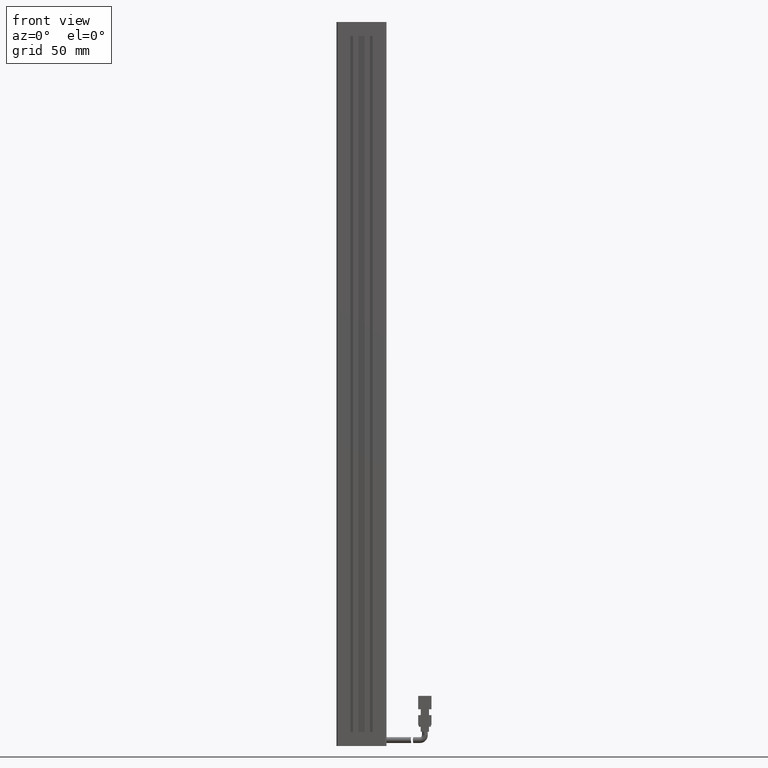
[diagram: clean part render]
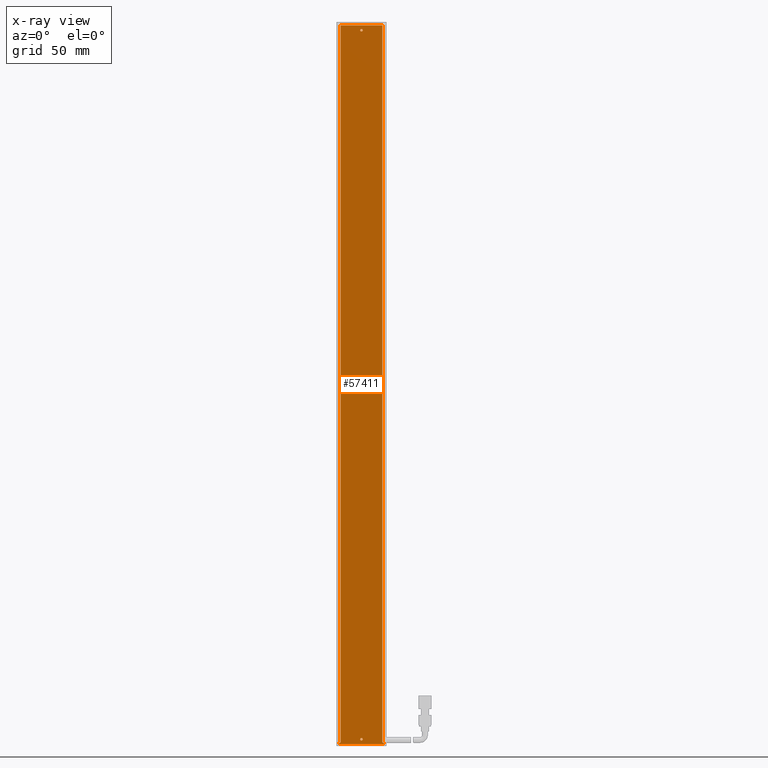
[diagram: x-ray — body ghosted, one internal face saturated and labeled with its STEP entity id]
A machine part, front view, then the same camera in x-ray: the body is ghosted and one INTERNAL B-rep face — a face not visible from any outside direction — is saturated and labeled: STEP entity #57411.
In plain terms, the highlighted planar face has unit normal (-0, 1, 0).
Its self-contained STEP definition (entity closure, byte-faithful):
#3808 = VERTEX_POINT ( 'NONE', #45632 ) ;
#4522 = VERTEX_POINT ( 'NONE', #37643 ) ;
#5290 = VECTOR ( 'NONE', #72030, 1000.000000000000000 ) ;
#6493 = CARTESIAN_POINT ( 'NONE',  ( 28.42537974683542100, 32.19594479660386800, 102.0000000000000000 ) ) ;
#7883 = ORIENTED_EDGE ( 'NONE', *, *, #36625, .F. ) ;
#8507 = DIRECTION ( 'NONE',  ( -5.551115123125781500E-017, -0.0000000000000000000, -1.000000000000000000 ) ) ;
#9221 = DIRECTION ( 'NONE',  ( -0.0000000000000000000, -1.000000000000000000, -0.0000000000000000000 ) ) ;
#10162 = CARTESIAN_POINT ( 'NONE',  ( 40.92537974683534700, 32.19594479660386100, -327.2499999999999400 ) ) ;
#13227 = CARTESIAN_POINT ( 'NONE',  ( 54.32537974683541600, 32.19594479660386100, 100.0000000000000900 ) ) ;
#13860 = VECTOR ( 'NONE', #17156, 1000.000000000000000 ) ;
#14464 = EDGE_CURVE ( 'NONE', #4522, #66731, #20875, .T. ) ;
#14803 = VERTEX_POINT ( 'NONE', #61317 ) ;
#14927 = CARTESIAN_POINT ( 'NONE',  ( 54.32537974683541600, 32.19594479660386100, 100.0000000000000900 ) ) ;
#15462 = EDGE_LOOP ( 'NONE', ( #7883, #53125 ) ) ;
#15795 = VERTEX_POINT ( 'NONE', #24875 ) ;
#17156 = DIRECTION ( 'NONE',  ( 1.000000000000000000, 0.0000000000000000000, -5.551115123125781500E-017 ) ) ;
#17260 = VERTEX_POINT ( 'NONE', #10162 ) ;
#18320 = FACE_BOUND ( 'NONE', #15462, .T. ) ;
#18559 = CARTESIAN_POINT ( 'NONE',  ( 40.92537974683534700, 32.19594479660386100, -328.7499999999998900 ) ) ;
#19162 = CARTESIAN_POINT ( 'NONE',  ( 40.92537974683542500, 32.19594479660386800, -330.0000000000000000 ) ) ;
#19275 = AXIS2_PLACEMENT_3D ( 'NONE', #45967, #9221, #52183 ) ;
#19357 = DIRECTION ( 'NONE',  ( 5.551115123125781500E-017, 0.0000000000000000000, 1.000000000000000000 ) ) ;
#20494 = AXIS2_PLACEMENT_3D ( 'NONE', #13227, #56238, #19357 ) ;
#20604 = DIRECTION ( 'NONE',  ( -0.0000000000000000000, -1.000000000000000000, -0.0000000000000000000 ) ) ;
#20875 = LINE ( 'NONE', #14927, #37209 ) ;
#21807 = LINE ( 'NONE', #24430, #54553 ) ;
#22401 = EDGE_LOOP ( 'NONE', ( #28399, #55712, #69679, #41742, #54224, #52018, #79014, #22724 ) ) ;
#22724 = ORIENTED_EDGE ( 'NONE', *, *, #23752, .F. ) ;
#22867 = LINE ( 'NONE', #67182, #55574 ) ;
#22901 = VERTEX_POINT ( 'NONE', #52319 ) ;
#22959 = AXIS2_PLACEMENT_3D ( 'NONE', #57442, #20604, #63606 ) ;
#23752 = EDGE_CURVE ( 'NONE', #22901, #4522, #22867, .T. ) ;
#23793 = EDGE_CURVE ( 'NONE', #49187, #32757, #71982, .T. ) ;
#24430 = CARTESIAN_POINT ( 'NONE',  ( 27.52537974683537000, 32.19594479660386100, 100.0000000000000900 ) ) ;
#24875 = CARTESIAN_POINT ( 'NONE',  ( 27.52537974683534500, 32.19594479660386100, -330.9999999999998900 ) ) ;
#24893 = CARTESIAN_POINT ( 'NONE',  ( 54.32537974683536700, 32.19594479660386100, -330.9999999999998900 ) ) ;
#25034 = VERTEX_POINT ( 'NONE', #48716 ) ;
#27652 = CIRCLE ( 'NONE', #22959, 0.7499999999999729100 ) ;
#28260 = CARTESIAN_POINT ( 'NONE',  ( 28.42537974683542100, 32.19594479660386800, -330.0000000000000000 ) ) ;
#28399 = ORIENTED_EDGE ( 'NONE', *, *, #66535, .F. ) ;
#28951 = DIRECTION ( 'NONE',  ( -0.0000000000000000000, -1.000000000000000000, -0.0000000000000000000 ) ) ;
#30354 = DIRECTION ( 'NONE',  ( 1.000000000000000000, 0.0000000000000000000, 0.0000000000000000000 ) ) ;
#30585 = LINE ( 'NONE', #19162, #77818 ) ;
#31503 = ORIENTED_EDGE ( 'NONE', *, *, #73902, .F. ) ;
#32717 = FACE_BOUND ( 'NONE', #35404, .T. ) ;
#32757 = VERTEX_POINT ( 'NONE', #28260 ) ;
#33208 = CARTESIAN_POINT ( 'NONE',  ( 28.42537974683542100, 32.19594479660386100, 100.0000000000000900 ) ) ;
#35112 = DIRECTION ( 'NONE',  ( -0.0000000000000000000, -1.000000000000000000, -0.0000000000000000000 ) ) ;
#35133 = CARTESIAN_POINT ( 'NONE',  ( 54.32537974683541600, 32.19594479660386100, 100.0000000000000900 ) ) ;
#35404 = EDGE_LOOP ( 'NONE', ( #31503, #59340 ) ) ;
#36625 = EDGE_CURVE ( 'NONE', #14803, #3808, #68533, .T. ) ;
#37209 = VECTOR ( 'NONE', #8507, 1000.000000000000000 ) ;
#37643 = CARTESIAN_POINT ( 'NONE',  ( 54.32537974683540200, 32.19594479660386100, -330.0000000000000000 ) ) ;
#38236 = DIRECTION ( 'NONE',  ( -1.000000000000000000, -0.0000000000000000000, 0.0000000000000000000 ) ) ;
#38942 = EDGE_CURVE ( 'NONE', #66731, #15795, #68768, .T. ) ;
#40366 = VERTEX_POINT ( 'NONE', #47244 ) ;
#40377 = EDGE_CURVE ( 'NONE', #3808, #14803, #74019, .T. ) ;
#41742 = ORIENTED_EDGE ( 'NONE', *, *, #54011, .T. ) ;
#43531 = PLANE ( 'NONE',  #20494 ) ;
#43683 = VERTEX_POINT ( 'NONE', #18559 ) ;
#44379 = EDGE_CURVE ( 'NONE', #43683, #17260, #27652, .T. ) ;
#45632 = CARTESIAN_POINT ( 'NONE',  ( 40.92537974683541800, 32.19594479660386100, 96.25000000000008500 ) ) ;
#45967 = CARTESIAN_POINT ( 'NONE',  ( 40.92537974683534700, 32.19594479660386100, -327.9999999999998900 ) ) ;
#47244 = CARTESIAN_POINT ( 'NONE',  ( 53.42537974683542500, 32.19594479660386800, 99.99999999999998600 ) ) ;
#48716 = CARTESIAN_POINT ( 'NONE',  ( 27.52537974683534500, 32.19594479660386800, -330.0000000000000000 ) ) ;
#49187 = VERTEX_POINT ( 'NONE', #33208 ) ;
#50496 = VECTOR ( 'NONE', #61639, 1000.000000000000000 ) ;
#52018 = ORIENTED_EDGE ( 'NONE', *, *, #38942, .F. ) ;
#52183 = DIRECTION ( 'NONE',  ( 0.0000000000000000000, 0.0000000000000000000, 1.000000000000000000 ) ) ;
#52319 = CARTESIAN_POINT ( 'NONE',  ( 53.42537974683542500, 32.19594479660386100, -330.0000000000000000 ) ) ;
#52358 = LINE ( 'NONE', #35133, #13860 ) ;
#53125 = ORIENTED_EDGE ( 'NONE', *, *, #40377, .F. ) ;
#53500 = AXIS2_PLACEMENT_3D ( 'NONE', #65773, #28951, #72009 ) ;
#54011 = EDGE_CURVE ( 'NONE', #32757, #25034, #30585, .T. ) ;
#54224 = ORIENTED_EDGE ( 'NONE', *, *, #74237, .F. ) ;
#54553 = VECTOR ( 'NONE', #67406, 1000.000000000000000 ) ;
#55510 = CARTESIAN_POINT ( 'NONE',  ( 54.32537974683540200, 32.19594479660386100, -330.9999999999998900 ) ) ;
#55574 = VECTOR ( 'NONE', #30354, 1000.000000000000000 ) ;
#55642 = DIRECTION ( 'NONE',  ( -0.0000000000000000000, -0.0000000000000000000, -1.000000000000000000 ) ) ;
#55712 = ORIENTED_EDGE ( 'NONE', *, *, #66564, .F. ) ;
#56238 = DIRECTION ( 'NONE',  ( -0.0000000000000000000, 1.000000000000000000, 0.0000000000000000000 ) ) ;
#57411 = ADVANCED_FACE ( 'NONE', ( #65459, #18320, #32717 ), #43531, .F. ) ;
#57442 = CARTESIAN_POINT ( 'NONE',  ( 40.92537974683534700, 32.19594479660386100, -327.9999999999998900 ) ) ;
#57521 = CIRCLE ( 'NONE', #19275, 0.7499999999999729100 ) ;
#59340 = ORIENTED_EDGE ( 'NONE', *, *, #44379, .F. ) ;
#61317 = CARTESIAN_POINT ( 'NONE',  ( 40.92537974683541800, 32.19594479660386100, 97.75000000000008500 ) ) ;
#61639 = DIRECTION ( 'NONE',  ( -1.000000000000000000, -0.0000000000000000000, 5.551115123125781500E-017 ) ) ;
#63606 = DIRECTION ( 'NONE',  ( 0.0000000000000000000, 0.0000000000000000000, 1.000000000000000000 ) ) ;
#65459 = FACE_OUTER_BOUND ( 'NONE', #22401, .T. ) ;
#65773 = CARTESIAN_POINT ( 'NONE',  ( 40.92537974683541800, 32.19594479660386100, 97.00000000000008500 ) ) ;
#65789 = CARTESIAN_POINT ( 'NONE',  ( 53.42537974683542500, 32.19594479660386800, 102.0000000000000000 ) ) ;
#66535 = EDGE_CURVE ( 'NONE', #40366, #22901, #70643, .T. ) ;
#66564 = EDGE_CURVE ( 'NONE', #49187, #40366, #52358, .T. ) ;
#66731 = VERTEX_POINT ( 'NONE', #24893 ) ;
#67182 = CARTESIAN_POINT ( 'NONE',  ( 40.92537974683542500, 32.19594479660386800, -330.0000000000000000 ) ) ;
#67406 = DIRECTION ( 'NONE',  ( 5.551115123125781500E-017, 0.0000000000000000000, 1.000000000000000000 ) ) ;
#68533 = CIRCLE ( 'NONE', #71505, 0.7500000000000006700 ) ;
#68768 = LINE ( 'NONE', #55510, #50496 ) ;
#69679 = ORIENTED_EDGE ( 'NONE', *, *, #23793, .T. ) ;
#69985 = VECTOR ( 'NONE', #55642, 1000.000000000000000 ) ;
#70643 = LINE ( 'NONE', #65789, #5290 ) ;
#71505 = AXIS2_PLACEMENT_3D ( 'NONE', #72007, #35112, #78170 ) ;
#71982 = LINE ( 'NONE', #6493, #69985 ) ;
#72007 = CARTESIAN_POINT ( 'NONE',  ( 40.92537974683541800, 32.19594479660386100, 97.00000000000008500 ) ) ;
#72009 = DIRECTION ( 'NONE',  ( 0.0000000000000000000, 0.0000000000000000000, 1.000000000000000000 ) ) ;
#72030 = DIRECTION ( 'NONE',  ( -0.0000000000000000000, -0.0000000000000000000, -1.000000000000000000 ) ) ;
#73902 = EDGE_CURVE ( 'NONE', #17260, #43683, #57521, .T. ) ;
#74019 = CIRCLE ( 'NONE', #53500, 0.7500000000000006700 ) ;
#74237 = EDGE_CURVE ( 'NONE', #15795, #25034, #21807, .T. ) ;
#77818 = VECTOR ( 'NONE', #38236, 1000.000000000000000 ) ;
#78170 = DIRECTION ( 'NONE',  ( 0.0000000000000000000, 0.0000000000000000000, 1.000000000000000000 ) ) ;
#79014 = ORIENTED_EDGE ( 'NONE', *, *, #14464, .F. ) ;